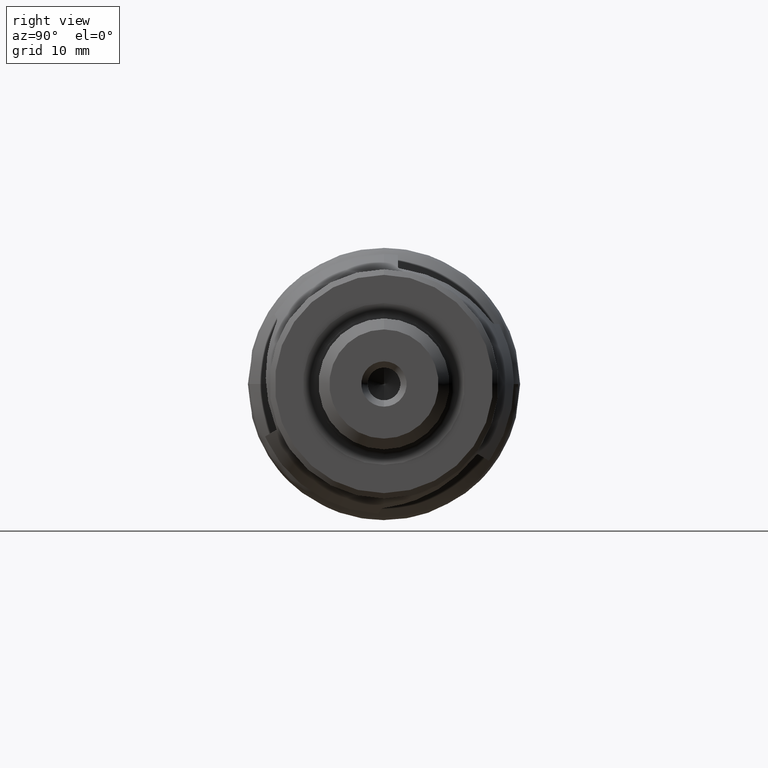
[diagram: clean part render]
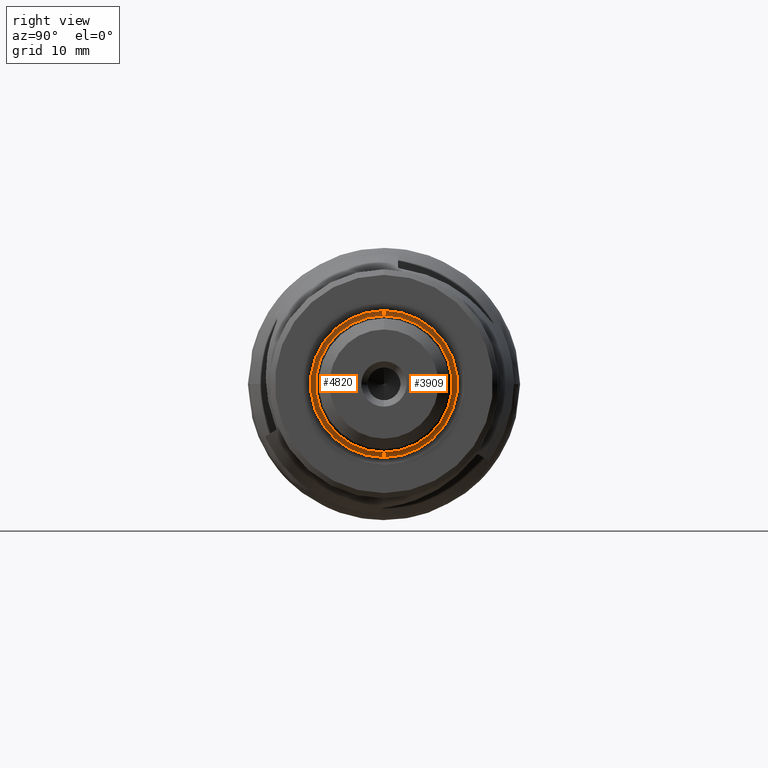
[diagram: same view with one multi-face feature highlighted, each face labeled with its STEP entity id]
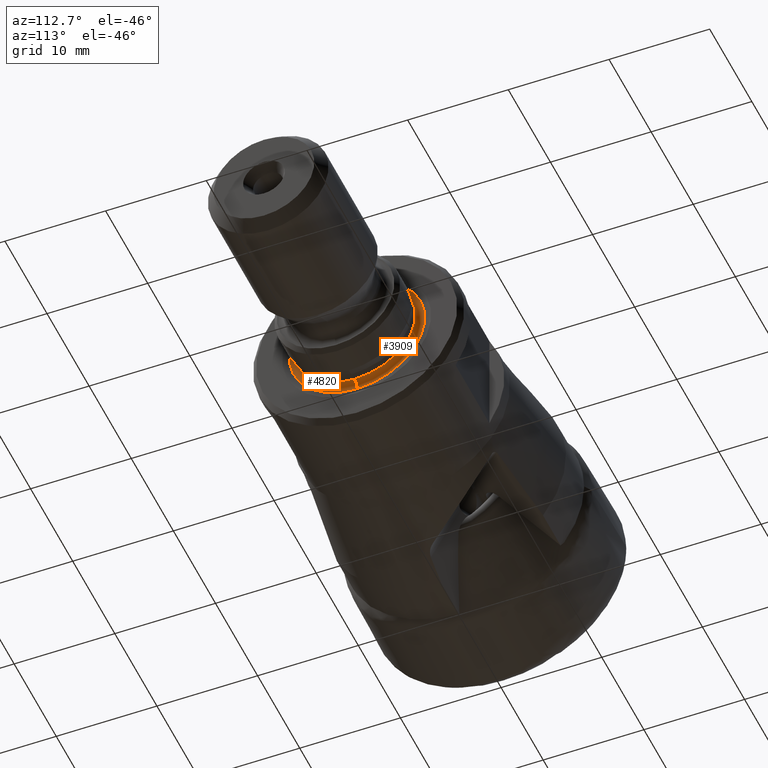
[diagram: same view with one multi-face feature highlighted, each face labeled with its STEP entity id]
A machine part, right view. The highlighted faces form ONE feature: a constant-radius fillet chain: 2 tangent blend faces with common blend radius 0.6 mm. The faces share edges in the B-rep.
A second angle (auxiliary view) of the same feature is appended — it is thin or edge-on in the first view.
Their STEP definitions:
[1] entity #4820 (Torus):
#303 = CARTESIAN_POINT ( 'NONE',  ( 34.79999993420530300, 7.827638576403090900E-016, -6.050000000104144100 ) ) ;
#337 = VERTEX_POINT ( 'NONE', #415 ) ;
#385 = EDGE_CURVE ( 'NONE', #1799, #1354, #5574, .T. ) ;
#415 = CARTESIAN_POINT ( 'NONE',  ( 34.20583910074212500, 8.656414047698734400E-016, 6.733503916050289600 ) ) ;
#422 = CIRCLE ( 'NONE', #3974, 0.5999999999999972000 ) ;
#440 = DIRECTION ( 'NONE',  ( -1.000000000000000000, -0.0000000000000000000, -0.0000000000000000000 ) ) ;
#739 = DIRECTION ( 'NONE',  ( 0.0000000000000000000, 0.0000000000000000000, 1.000000000000000000 ) ) ;
#745 = ORIENTED_EDGE ( 'NONE', *, *, #1267, .F. ) ;
#910 = DIRECTION ( 'NONE',  ( 0.0000000000000000000, -1.224646799147353900E-016, 1.000000000000000000 ) ) ;
#921 = DIRECTION ( 'NONE',  ( -0.0000000000000000000, 1.000000000000000000, 1.224646799147353200E-016 ) ) ;
#1006 = CARTESIAN_POINT ( 'NONE',  ( 34.79999993420530300, 0.0000000000000000000, 0.0000000000000000000 ) ) ;
#1201 = EDGE_CURVE ( 'NONE', #337, #1354, #422, .T. ) ;
#1267 = EDGE_CURVE ( 'NONE', #3318, #337, #2142, .T. ) ;
#1354 = VERTEX_POINT ( 'NONE', #5304 ) ;
#1777 = AXIS2_PLACEMENT_3D ( 'NONE', #5138, #2017, #739 ) ;
#1799 = VERTEX_POINT ( 'NONE', #303 ) ;
#1870 = EDGE_LOOP ( 'NONE', ( #745, #3332, #2491, #5503 ) ) ;
#1964 = FACE_OUTER_BOUND ( 'NONE', #1870, .T. ) ;
#2017 = DIRECTION ( 'NONE',  ( -1.000000000000000000, -0.0000000000000000000, -0.0000000000000000000 ) ) ;
#2142 = CIRCLE ( 'NONE', #1777, 6.733503916050289600 ) ;
#2153 = DIRECTION ( 'NONE',  ( 0.0000000000000000000, 0.0000000000000000000, -1.000000000000000000 ) ) ;
#2491 = ORIENTED_EDGE ( 'NONE', *, *, #385, .T. ) ;
#2530 = CARTESIAN_POINT ( 'NONE',  ( 34.79999993420530300, 0.0000000000000000000, 6.650000000104141100 ) ) ;
#3151 = EDGE_CURVE ( 'NONE', #3318, #1799, #3926, .T. ) ;
#3318 = VERTEX_POINT ( 'NONE', #5057 ) ;
#3332 = ORIENTED_EDGE ( 'NONE', *, *, #3151, .T. ) ;
#3564 = CARTESIAN_POINT ( 'NONE',  ( 34.79999993420530300, 8.143901214457434900E-016, -6.650000000104141100 ) ) ;
#3787 = AXIS2_PLACEMENT_3D ( 'NONE', #1006, #5344, #4044 ) ;
#3926 = CIRCLE ( 'NONE', #5271, 0.5999999999999972000 ) ;
#3974 = AXIS2_PLACEMENT_3D ( 'NONE', #2530, #4884, #2153 ) ;
#3975 = DIRECTION ( 'NONE',  ( 0.0000000000000000000, 0.0000000000000000000, 1.000000000000000000 ) ) ;
#4044 = DIRECTION ( 'NONE',  ( 0.0000000000000000000, 0.0000000000000000000, 1.000000000000000000 ) ) ;
#4804 = CARTESIAN_POINT ( 'NONE',  ( 34.79999993420530300, 0.0000000000000000000, 0.0000000000000000000 ) ) ;
#4810 = AXIS2_PLACEMENT_3D ( 'NONE', #4804, #440, #3975 ) ;
#4820 = ADVANCED_FACE ( 'NONE', ( #1964 ), #4825, .F. ) ;
#4825 = TOROIDAL_SURFACE ( 'NONE', #4810, 6.650000000104141100, 0.5999999999999974200 ) ;
#4884 = DIRECTION ( 'NONE',  ( 0.0000000000000000000, -1.000000000000000000, 0.0000000000000000000 ) ) ;
#5057 = CARTESIAN_POINT ( 'NONE',  ( 34.20583910074212500, 0.0000000000000000000, -6.733503916050289600 ) ) ;
#5138 = CARTESIAN_POINT ( 'NONE',  ( 34.20583910074212500, 0.0000000000000000000, 0.0000000000000000000 ) ) ;
#5271 = AXIS2_PLACEMENT_3D ( 'NONE', #3564, #921, #910 ) ;
#5304 = CARTESIAN_POINT ( 'NONE',  ( 34.79999993420530300, 0.0000000000000000000, 6.050000000104144100 ) ) ;
#5344 = DIRECTION ( 'NONE',  ( -1.000000000000000000, -0.0000000000000000000, -0.0000000000000000000 ) ) ;
#5503 = ORIENTED_EDGE ( 'NONE', *, *, #1201, .F. ) ;
#5574 = CIRCLE ( 'NONE', #3787, 6.050000000104144100 ) ;
[2] entity #3909 (Torus):
#46 = DIRECTION ( 'NONE',  ( 0.0000000000000000000, 0.0000000000000000000, 1.000000000000000000 ) ) ;
#277 = EDGE_CURVE ( 'NONE', #1354, #1799, #3096, .T. ) ;
#303 = CARTESIAN_POINT ( 'NONE',  ( 34.79999993420530300, 7.827638576403090900E-016, -6.050000000104144100 ) ) ;
#337 = VERTEX_POINT ( 'NONE', #415 ) ;
#415 = CARTESIAN_POINT ( 'NONE',  ( 34.20583910074212500, 8.656414047698734400E-016, 6.733503916050289600 ) ) ;
#422 = CIRCLE ( 'NONE', #3974, 0.5999999999999972000 ) ;
#566 = ORIENTED_EDGE ( 'NONE', *, *, #3151, .F. ) ;
#783 = AXIS2_PLACEMENT_3D ( 'NONE', #4377, #1724, #835 ) ;
#835 = DIRECTION ( 'NONE',  ( 0.0000000000000000000, 0.0000000000000000000, 1.000000000000000000 ) ) ;
#853 = DIRECTION ( 'NONE',  ( 0.0000000000000000000, 0.0000000000000000000, 1.000000000000000000 ) ) ;
#910 = DIRECTION ( 'NONE',  ( 0.0000000000000000000, -1.224646799147353900E-016, 1.000000000000000000 ) ) ;
#921 = DIRECTION ( 'NONE',  ( -0.0000000000000000000, 1.000000000000000000, 1.224646799147353200E-016 ) ) ;
#948 = ORIENTED_EDGE ( 'NONE', *, *, #1201, .T. ) ;
#1201 = EDGE_CURVE ( 'NONE', #337, #1354, #422, .T. ) ;
#1354 = VERTEX_POINT ( 'NONE', #5304 ) ;
#1363 = CARTESIAN_POINT ( 'NONE',  ( 34.79999993420530300, 0.0000000000000000000, 0.0000000000000000000 ) ) ;
#1418 = FACE_OUTER_BOUND ( 'NONE', #4204, .T. ) ;
#1472 = ORIENTED_EDGE ( 'NONE', *, *, #277, .T. ) ;
#1724 = DIRECTION ( 'NONE',  ( -1.000000000000000000, -0.0000000000000000000, -0.0000000000000000000 ) ) ;
#1799 = VERTEX_POINT ( 'NONE', #303 ) ;
#2153 = DIRECTION ( 'NONE',  ( 0.0000000000000000000, 0.0000000000000000000, -1.000000000000000000 ) ) ;
#2244 = TOROIDAL_SURFACE ( 'NONE', #2412, 6.650000000104141100, 0.5999999999999974200 ) ;
#2412 = AXIS2_PLACEMENT_3D ( 'NONE', #1363, #5703, #46 ) ;
#2530 = CARTESIAN_POINT ( 'NONE',  ( 34.79999993420530300, 0.0000000000000000000, 6.650000000104141100 ) ) ;
#2893 = ORIENTED_EDGE ( 'NONE', *, *, #3994, .F. ) ;
#3096 = CIRCLE ( 'NONE', #783, 6.050000000104144100 ) ;
#3151 = EDGE_CURVE ( 'NONE', #3318, #1799, #3926, .T. ) ;
#3318 = VERTEX_POINT ( 'NONE', #5057 ) ;
#3564 = CARTESIAN_POINT ( 'NONE',  ( 34.79999993420530300, 8.143901214457434900E-016, -6.650000000104141100 ) ) ;
#3909 = ADVANCED_FACE ( 'NONE', ( #1418 ), #2244, .F. ) ;
#3926 = CIRCLE ( 'NONE', #5271, 0.5999999999999972000 ) ;
#3974 = AXIS2_PLACEMENT_3D ( 'NONE', #2530, #4884, #2153 ) ;
#3994 = EDGE_CURVE ( 'NONE', #337, #3318, #4898, .T. ) ;
#4007 = DIRECTION ( 'NONE',  ( -1.000000000000000000, -0.0000000000000000000, -0.0000000000000000000 ) ) ;
#4204 = EDGE_LOOP ( 'NONE', ( #566, #2893, #948, #1472 ) ) ;
#4377 = CARTESIAN_POINT ( 'NONE',  ( 34.79999993420530300, 0.0000000000000000000, 0.0000000000000000000 ) ) ;
#4864 = CARTESIAN_POINT ( 'NONE',  ( 34.20583910074212500, 0.0000000000000000000, 0.0000000000000000000 ) ) ;
#4884 = DIRECTION ( 'NONE',  ( 0.0000000000000000000, -1.000000000000000000, 0.0000000000000000000 ) ) ;
#4898 = CIRCLE ( 'NONE', #5678, 6.733503916050289600 ) ;
#5057 = CARTESIAN_POINT ( 'NONE',  ( 34.20583910074212500, 0.0000000000000000000, -6.733503916050289600 ) ) ;
#5271 = AXIS2_PLACEMENT_3D ( 'NONE', #3564, #921, #910 ) ;
#5304 = CARTESIAN_POINT ( 'NONE',  ( 34.79999993420530300, 0.0000000000000000000, 6.050000000104144100 ) ) ;
#5678 = AXIS2_PLACEMENT_3D ( 'NONE', #4864, #4007, #853 ) ;
#5703 = DIRECTION ( 'NONE',  ( -1.000000000000000000, -0.0000000000000000000, -0.0000000000000000000 ) ) ;